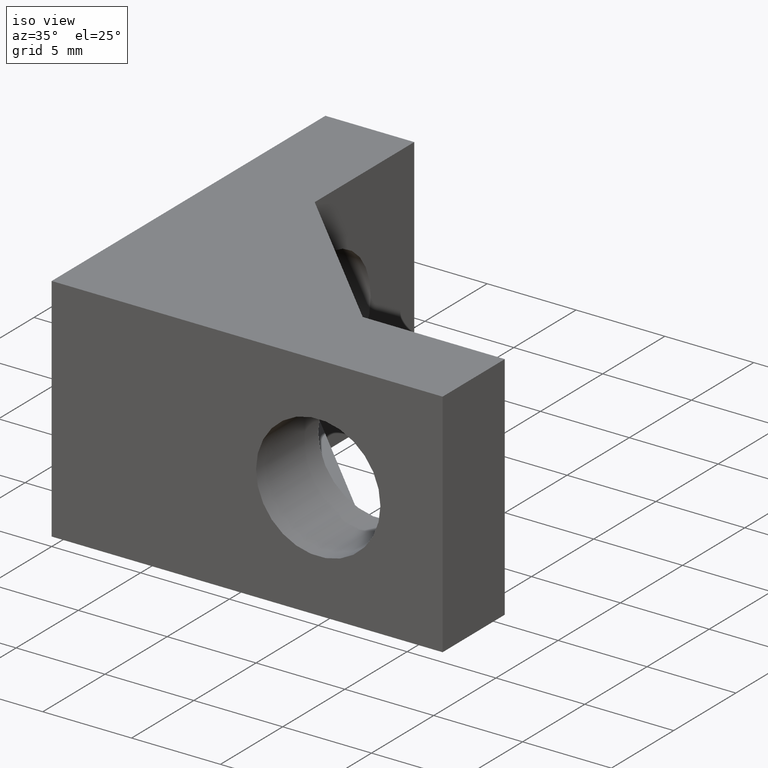
[diagram: clean part render]
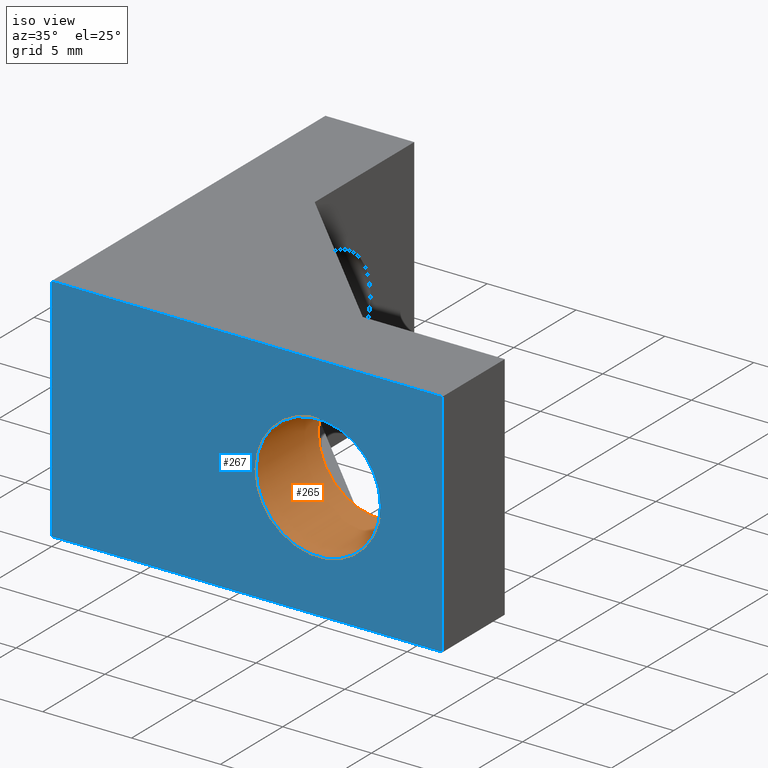
[diagram: same view with the hole feature highlighted: cylindrical wall and planar end face, labeled with their STEP entity ids]
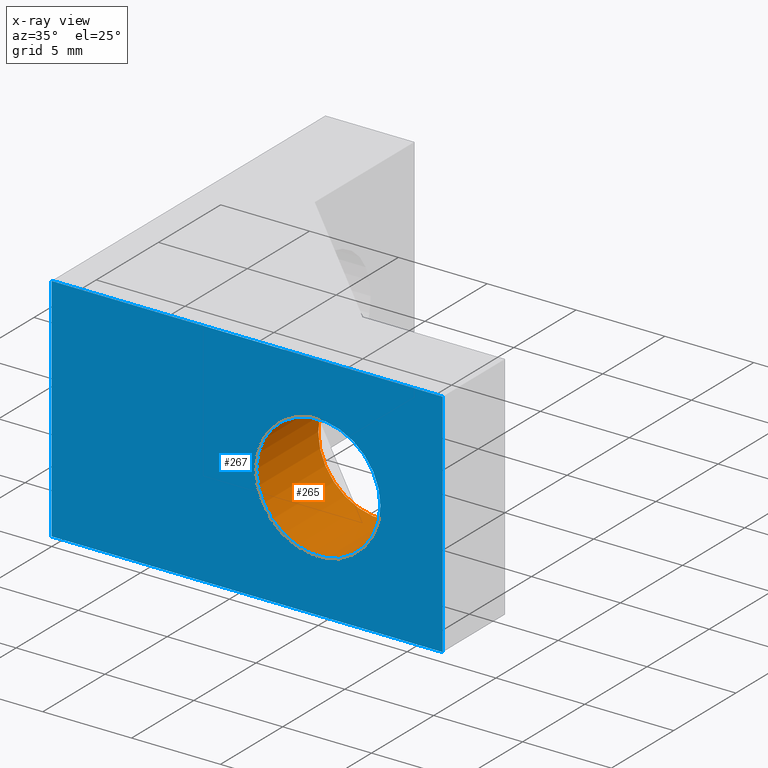
[diagram: x-ray of the same camera — body ghosted, the hole faces saturated]
A machine part, iso view. The highlighted faces form one hole feature of diameter 7 mm: the cylindrical wall (entity #265, orange) and its adjacent planar end face (entity #267, blue) — they share a circular edge in the B-rep.
The next image is the same camera in x-ray (body ghosted, the hole faces saturated) — the bore reads through the body.
Wall:
#31=FACE_OUTER_BOUND('',#45,.T.);
#45=EDGE_LOOP('',(#191,#192,#193,#194));
#63=LINE('',#395,#95);
#95=VECTOR('',#326,3.5);
#127=CIRCLE('',#303,3.5);
#128=CIRCLE('',#304,3.5);
#131=VERTEX_POINT('',#392);
#132=VERTEX_POINT('',#394);
#155=EDGE_CURVE('',#131,#131,#127,.T.);
#156=EDGE_CURVE('',#131,#132,#63,.T.);
#157=EDGE_CURVE('',#132,#132,#128,.T.);
#191=ORIENTED_EDGE('',*,*,#155,.F.);
#192=ORIENTED_EDGE('',*,*,#156,.T.);
#193=ORIENTED_EDGE('',*,*,#157,.T.);
#194=ORIENTED_EDGE('',*,*,#156,.F.);
#263=CYLINDRICAL_SURFACE('',#302,3.5);
#265=ADVANCED_FACE('',(#31),#263,.F.);
#302=AXIS2_PLACEMENT_3D('',#391,#322,#323);
#303=AXIS2_PLACEMENT_3D('',#393,#324,#325);
#304=AXIS2_PLACEMENT_3D('',#396,#327,#328);
#322=DIRECTION('center_axis',(-5.10212787052002E-17,1.,0.));
#323=DIRECTION('ref_axis',(-1.,-5.10212787052002E-17,0.));
#324=DIRECTION('center_axis',(-5.10212787052002E-17,1.,0.));
#325=DIRECTION('ref_axis',(-1.,-5.10212787052002E-17,0.));
#326=DIRECTION('',(-5.10212787052002E-17,1.,0.));
#327=DIRECTION('center_axis',(-5.10212787052002E-17,1.,0.));
#328=DIRECTION('ref_axis',(-1.,-5.10212787052002E-17,0.));
#391=CARTESIAN_POINT('Origin',(15.,-5.20417042793042E-15,0.));
#392=CARTESIAN_POINT('',(18.5,-5.02559595246222E-15,-4.28626379701574E-16));
#393=CARTESIAN_POINT('Origin',(15.,-5.20417042793042E-15,0.));
#394=CARTESIAN_POINT('',(18.5,5.,-4.28626379701574E-16));
#395=CARTESIAN_POINT('',(18.5,-5.02559595246222E-15,-4.28626379701574E-16));
#396=CARTESIAN_POINT('Origin',(15.,5.,0.));
End face:
#15=FACE_BOUND('',#48,.T.);
#19=PLANE('',#308);
#33=FACE_OUTER_BOUND('',#47,.T.);
#47=EDGE_LOOP('',(#199,#200,#201,#202));
#48=EDGE_LOOP('',(#203));
#65=LINE('',#406,#97);
#66=LINE('',#408,#98);
#67=LINE('',#410,#99);
#68=LINE('',#411,#100);
#97=VECTOR('',#338,1000.);
#98=VECTOR('',#339,1000.);
#99=VECTOR('',#340,1000.);
#100=VECTOR('',#341,1000.);
#127=CIRCLE('',#303,3.5);
#131=VERTEX_POINT('',#392);
#135=VERTEX_POINT('',#404);
#136=VERTEX_POINT('',#405);
#137=VERTEX_POINT('',#407);
#138=VERTEX_POINT('',#409);
#155=EDGE_CURVE('',#131,#131,#127,.T.);
#161=EDGE_CURVE('',#135,#136,#65,.T.);
#162=EDGE_CURVE('',#137,#136,#66,.T.);
#163=EDGE_CURVE('',#138,#137,#67,.T.);
#164=EDGE_CURVE('',#138,#135,#68,.T.);
#199=ORIENTED_EDGE('',*,*,#161,.T.);
#200=ORIENTED_EDGE('',*,*,#162,.F.);
#201=ORIENTED_EDGE('',*,*,#163,.F.);
#202=ORIENTED_EDGE('',*,*,#164,.T.);
#203=ORIENTED_EDGE('',*,*,#155,.T.);
#267=ADVANCED_FACE('',(#33,#15),#19,.F.);
#303=AXIS2_PLACEMENT_3D('',#393,#324,#325);
#308=AXIS2_PLACEMENT_3D('',#403,#336,#337);
#324=DIRECTION('center_axis',(-5.10212787052002E-17,1.,0.));
#325=DIRECTION('ref_axis',(-1.,-5.10212787052002E-17,0.));
#336=DIRECTION('center_axis',(9.11086486901662E-17,1.,0.));
#337=DIRECTION('ref_axis',(-1.,9.11086486901662E-17,0.));
#338=DIRECTION('',(1.,-9.11086486901661E-17,0.));
#339=DIRECTION('',(0.,0.,-1.));
#340=DIRECTION('',(1.,-9.11086486901661E-17,0.));
#341=DIRECTION('',(0.,0.,-1.));
#392=CARTESIAN_POINT('',(18.5,-5.02559595246222E-15,-4.28626379701574E-16));
#393=CARTESIAN_POINT('Origin',(15.,-5.20417042793042E-15,0.));
#403=CARTESIAN_POINT('Origin',(22.,-2.00439027118366E-15,6.5));
#404=CARTESIAN_POINT('',(0.,0.,-6.5));
#405=CARTESIAN_POINT('',(22.,-2.00439027118366E-15,-6.5));
#406=CARTESIAN_POINT('',(22.,-2.00439027118366E-15,-6.5));
#407=CARTESIAN_POINT('',(22.,-2.00439027118366E-15,6.5));
#408=CARTESIAN_POINT('',(22.,-2.00439027118366E-15,6.5));
#409=CARTESIAN_POINT('',(0.,0.,6.5));
#410=CARTESIAN_POINT('',(22.,-2.00439027118366E-15,6.5));
#411=CARTESIAN_POINT('',(0.,0.,6.5));